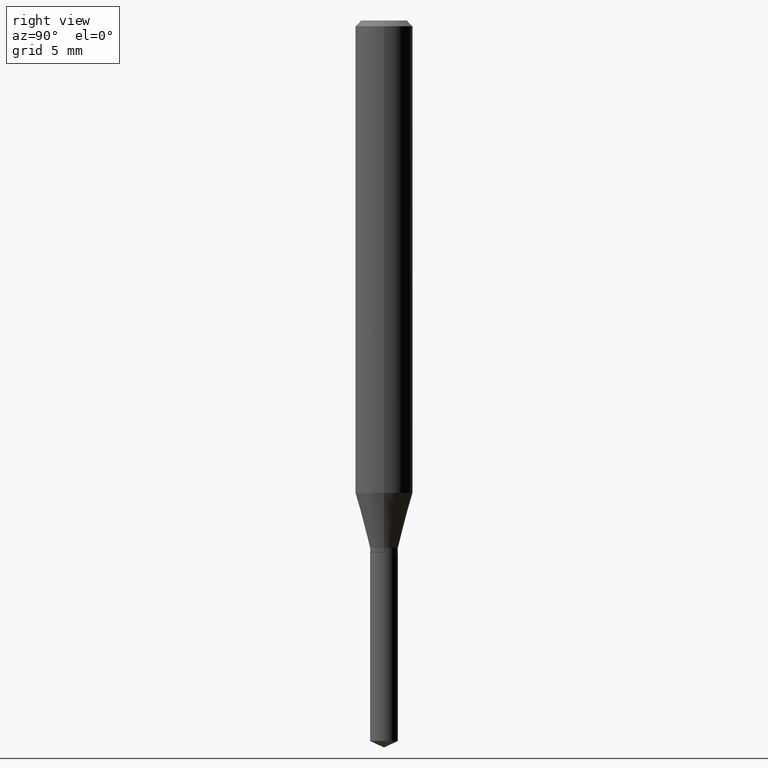
[diagram: clean part render]
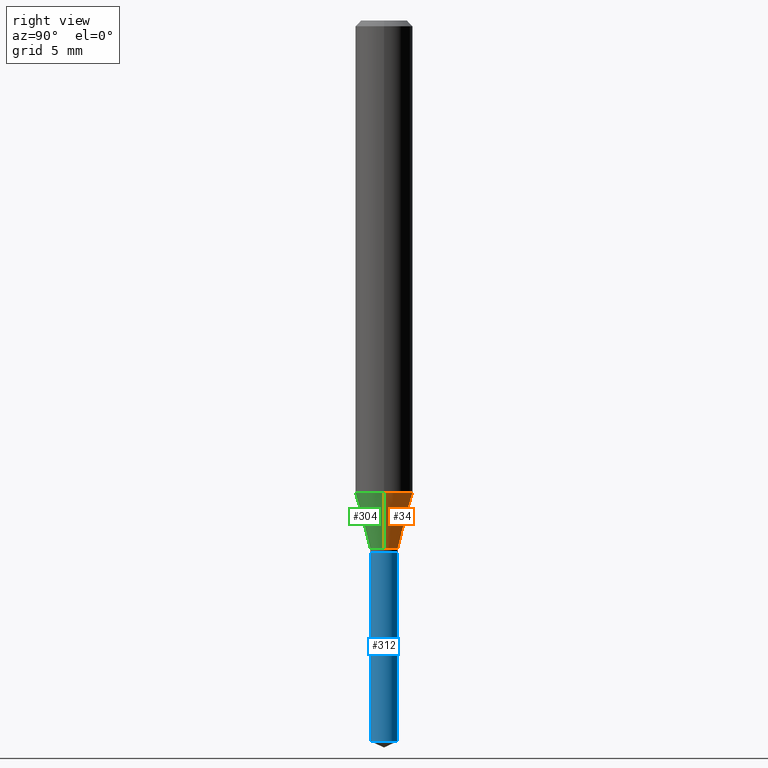
[diagram: same view with three faces highlighted in distinct colors, each labeled with its STEP entity id]
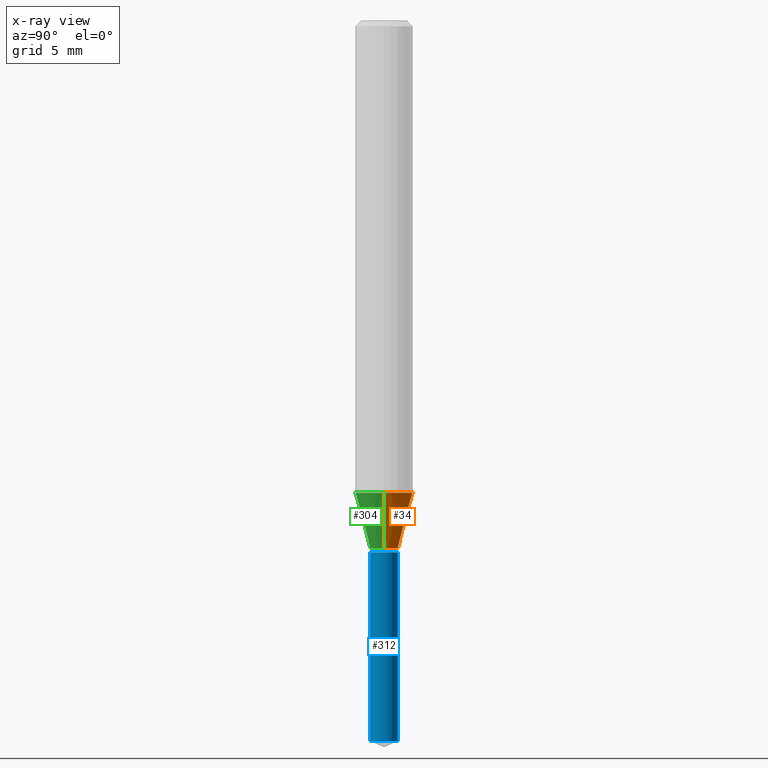
[diagram: x-ray of the same camera — body ghosted, the three highlighted faces saturated]
A machine part, right view with three faces highlighted in distinct colors.
The next image is the same camera in x-ray (body ghosted, the three faces saturated) — at least one of them is partly hidden behind the body in this view.
Their STEP definitions:

[orange] entity #34 — the highlighted conical surface has half-angle 15 deg.
#3 = EDGE_LOOP ( 'NONE', ( #474, #376, #264, #287 ) ) ;
#33 = CARTESIAN_POINT ( 'NONE',  ( 2.655534576636439869E-29, -3.791399585849771334E-15, -1.085899999999999865 ) ) ;
#34 = ADVANCED_FACE ( 'NONE', ( #381 ), #302, .T. ) ;
#40 = VERTEX_POINT ( 'NONE', #341 ) ;
#42 = VECTOR ( 'NONE', #113, 39.37007874015747433 ) ;
#46 = EDGE_CURVE ( 'NONE', #62, #40, #307, .T. ) ;
#47 = CARTESIAN_POINT ( 'NONE',  ( -0.02855000000000000246, -3.602680134212577558E-15, -1.085899999999999865 ) ) ;
#62 = VERTEX_POINT ( 'NONE', #245 ) ;
#77 = CIRCLE ( 'NONE', #335, 0.02855000000000000246 ) ;
#83 = CARTESIAN_POINT ( 'NONE',  ( -0.05905000000000011628, -2.974397335001072911E-15, -0.9720724503691490215 ) ) ;
#84 = AXIS2_PLACEMENT_3D ( 'NONE', #33, #488, #186 ) ;
#95 = EDGE_CURVE ( 'NONE', #189, #152, #124, .T. ) ;
#106 = DIRECTION ( 'NONE',  ( 1.000000000000000000, -6.982962677686258822E-15, 0.000000000000000000 ) ) ;
#113 = DIRECTION ( 'NONE',  ( 0.2588190451025213501, 1.565188264969621968E-15, 0.9659258262890682012 ) ) ;
#124 = LINE ( 'NONE', #274, #405 ) ;
#152 = VERTEX_POINT ( 'NONE', #83 ) ;
#153 = DIRECTION ( 'NONE',  ( -2.445468806185136597E-29, 3.491481338843145583E-15, 1.000000000000000000 ) ) ;
#159 = DIRECTION ( 'NONE',  ( -0.2588190451025213501, 5.211531920934551042E-15, 0.9659258262890682012 ) ) ;
#185 = DIRECTION ( 'NONE',  ( -2.445468806185136597E-29, 3.491481338843145583E-15, 1.000000000000000000 ) ) ;
#186 = DIRECTION ( 'NONE',  ( 1.000000000000000000, -6.982962677686258822E-15, 0.000000000000000000 ) ) ;
#189 = VERTEX_POINT ( 'NONE', #47 ) ;
#245 = CARTESIAN_POINT ( 'NONE',  ( 0.02855000000000000246, -3.990763170297714142E-15, -1.085899999999999865 ) ) ;
#246 = CIRCLE ( 'NONE', #478, 0.05905000000000011628 ) ;
#264 = ORIENTED_EDGE ( 'NONE', *, *, #457, .F. ) ;
#266 = DIRECTION ( 'NONE',  ( 1.000000000000000000, -6.982962677686266711E-15, 0.000000000000000000 ) ) ;
#274 = CARTESIAN_POINT ( 'NONE',  ( -0.02855000000000000246, -3.588539634790262196E-15, -1.085899999999999865 ) ) ;
#287 = ORIENTED_EDGE ( 'NONE', *, *, #46, .F. ) ;
#302 = CONICAL_SURFACE ( 'NONE', #84, 0.02855000000000000246, 0.2617993877991500740 ) ;
#306 = CARTESIAN_POINT ( 'NONE',  ( 2.655534576636439869E-29, -3.791399585849771334E-15, -1.085899999999999865 ) ) ;
#307 = LINE ( 'NONE', #420, #42 ) ;
#335 = AXIS2_PLACEMENT_3D ( 'NONE', #306, #153, #106 ) ;
#341 = CARTESIAN_POINT ( 'NONE',  ( 0.05905000000000011628, -3.806316766584788113E-15, -0.9720724503691490215 ) ) ;
#376 = ORIENTED_EDGE ( 'NONE', *, *, #95, .T. ) ;
#377 = CARTESIAN_POINT ( 'NONE',  ( 2.377172854729703171E-29, -3.393972820467413587E-15, -0.9720724503691490215 ) ) ;
#381 = FACE_OUTER_BOUND ( 'NONE', #3, .T. ) ;
#405 = VECTOR ( 'NONE', #159, 39.37007874015747433 ) ;
#420 = CARTESIAN_POINT ( 'NONE',  ( 0.02855000000000000246, -3.990763170297714142E-15, -1.085899999999999865 ) ) ;
#433 = EDGE_CURVE ( 'NONE', #62, #189, #77, .T. ) ;
#457 = EDGE_CURVE ( 'NONE', #40, #152, #246, .T. ) ;
#474 = ORIENTED_EDGE ( 'NONE', *, *, #433, .T. ) ;
#478 = AXIS2_PLACEMENT_3D ( 'NONE', #377, #185, #266 ) ;
#488 = DIRECTION ( 'NONE',  ( -2.445468806185136597E-29, 3.491481338843145583E-15, 1.000000000000000000 ) ) ;

[blue] entity #312 — the highlighted cylindrical surface (edge-blend (fillet) strip) has radius 0.7252 mm, axis along (-0, 0, 1).
#17 = AXIS2_PLACEMENT_3D ( 'NONE', #74, #414, #343 ) ;
#22 = DIRECTION ( 'NONE',  ( -6.982962677686265133E-15, -1.000000000000000000, 4.784322230585399479E-15 ) ) ;
#25 = VERTEX_POINT ( 'NONE', #226 ) ;
#53 = VECTOR ( 'NONE', #303, 39.37007874015748143 ) ;
#54 = CARTESIAN_POINT ( 'NONE',  ( 2.028599510595448342E-16, 0.02854999999999481564, -1.482786916359674967 ) ) ;
#57 = ORIENTED_EDGE ( 'NONE', *, *, #372, .F. ) ;
#74 = CARTESIAN_POINT ( 'NONE',  ( 3.626184356031370148E-29, -5.177015148886716837E-15, -1.482786916359674967 ) ) ;
#92 = CARTESIAN_POINT ( 'NONE',  ( 2.676565608369631794E-29, -3.821426325363822773E-15, -1.094499999999999806 ) ) ;
#105 = CIRCLE ( 'NONE', #482, 0.02854999999999999899 ) ;
#131 = FACE_OUTER_BOUND ( 'NONE', #386, .T. ) ;
#133 = DIRECTION ( 'NONE',  ( -6.982962677686265133E-15, -1.000000000000000000, 4.784322230585399479E-15 ) ) ;
#139 = CARTESIAN_POINT ( 'NONE',  ( -1.993635844479161093E-16, -0.02855000000000381885, -1.094499999999999806 ) ) ;
#140 = EDGE_CURVE ( 'NONE', #254, #338, #315, .T. ) ;
#143 = ORIENTED_EDGE ( 'NONE', *, *, #140, .F. ) ;
#151 = CARTESIAN_POINT ( 'NONE',  ( 2.028599510595352939E-16, 0.02854999999999617566, -1.094500000000000028 ) ) ;
#173 = CARTESIAN_POINT ( 'NONE',  ( 2.676565608369631794E-29, -3.821426325363822773E-15, -1.094499999999999806 ) ) ;
#211 = CARTESIAN_POINT ( 'NONE',  ( -1.993635844479065690E-16, -0.02855000000000517194, -1.482786916359674967 ) ) ;
#226 = CARTESIAN_POINT ( 'NONE',  ( 2.028599510595448835E-16, 0.02854999999999617566, -1.094500000000000028 ) ) ;
#230 = LINE ( 'NONE', #151, #53 ) ;
#250 = VERTEX_POINT ( 'NONE', #54 ) ;
#254 = VERTEX_POINT ( 'NONE', #211 ) ;
#257 = DIRECTION ( 'NONE',  ( -2.445662492480417196E-29, 3.491203969044364518E-15, 1.000000000000000000 ) ) ;
#261 = ORIENTED_EDGE ( 'NONE', *, *, #389, .T. ) ;
#275 = CIRCLE ( 'NONE', #17, 0.02854999999999999899 ) ;
#279 = DIRECTION ( 'NONE',  ( -2.445662492480417196E-29, 3.491203969044364912E-15, 1.000000000000000000 ) ) ;
#284 = DIRECTION ( 'NONE',  ( -2.445662492480417196E-29, 3.491203969044364518E-15, 1.000000000000000000 ) ) ;
#303 = DIRECTION ( 'NONE',  ( -2.445662492480417196E-29, 3.491203969044364912E-15, 1.000000000000000000 ) ) ;
#312 = ADVANCED_FACE ( 'NONE', ( #131 ), #441, .T. ) ;
#315 = LINE ( 'NONE', #395, #365 ) ;
#338 = VERTEX_POINT ( 'NONE', #139 ) ;
#339 = ORIENTED_EDGE ( 'NONE', *, *, #466, .T. ) ;
#343 = DIRECTION ( 'NONE',  ( -6.982962677686265133E-15, -1.000000000000000000, 0.000000000000000000 ) ) ;
#347 = AXIS2_PLACEMENT_3D ( 'NONE', #92, #257, #133 ) ;
#365 = VECTOR ( 'NONE', #279, 39.37007874015748143 ) ;
#372 = EDGE_CURVE ( 'NONE', #338, #25, #105, .T. ) ;
#386 = EDGE_LOOP ( 'NONE', ( #261, #339, #57, #143 ) ) ;
#389 = EDGE_CURVE ( 'NONE', #254, #250, #275, .T. ) ;
#395 = CARTESIAN_POINT ( 'NONE',  ( -1.993635844479161093E-16, -0.02855000000000381885, -1.094499999999999806 ) ) ;
#414 = DIRECTION ( 'NONE',  ( -2.445662492480417196E-29, 3.491203969044364518E-15, 1.000000000000000000 ) ) ;
#441 = CYLINDRICAL_SURFACE ( 'NONE', #347, 0.02854999999999999899 ) ;
#466 = EDGE_CURVE ( 'NONE', #250, #25, #230, .T. ) ;
#482 = AXIS2_PLACEMENT_3D ( 'NONE', #173, #284, #22 ) ;

[green] entity #304 — the highlighted conical surface has half-angle 15 deg.
#7 = CONICAL_SURFACE ( 'NONE', #411, 0.02855000000000000246, 0.2617993877991500740 ) ;
#24 = CARTESIAN_POINT ( 'NONE',  ( 2.655534576636439869E-29, -3.791399585849771334E-15, -1.085899999999999865 ) ) ;
#37 = EDGE_LOOP ( 'NONE', ( #403, #104, #231, #154 ) ) ;
#40 = VERTEX_POINT ( 'NONE', #341 ) ;
#42 = VECTOR ( 'NONE', #113, 39.37007874015747433 ) ;
#46 = EDGE_CURVE ( 'NONE', #62, #40, #307, .T. ) ;
#47 = CARTESIAN_POINT ( 'NONE',  ( -0.02855000000000000246, -3.602680134212577558E-15, -1.085899999999999865 ) ) ;
#62 = VERTEX_POINT ( 'NONE', #245 ) ;
#70 = CARTESIAN_POINT ( 'NONE',  ( 2.655534576636439869E-29, -3.791399585849771334E-15, -1.085899999999999865 ) ) ;
#75 = AXIS2_PLACEMENT_3D ( 'NONE', #70, #227, #382 ) ;
#83 = CARTESIAN_POINT ( 'NONE',  ( -0.05905000000000011628, -2.974397335001072911E-15, -0.9720724503691490215 ) ) ;
#95 = EDGE_CURVE ( 'NONE', #189, #152, #124, .T. ) ;
#103 = FACE_OUTER_BOUND ( 'NONE', #37, .T. ) ;
#104 = ORIENTED_EDGE ( 'NONE', *, *, #487, .T. ) ;
#113 = DIRECTION ( 'NONE',  ( 0.2588190451025213501, 1.565188264969621968E-15, 0.9659258262890682012 ) ) ;
#124 = LINE ( 'NONE', #274, #405 ) ;
#142 = CIRCLE ( 'NONE', #292, 0.05905000000000011628 ) ;
#152 = VERTEX_POINT ( 'NONE', #83 ) ;
#154 = ORIENTED_EDGE ( 'NONE', *, *, #285, .F. ) ;
#159 = DIRECTION ( 'NONE',  ( -0.2588190451025213501, 5.211531920934551042E-15, 0.9659258262890682012 ) ) ;
#170 = DIRECTION ( 'NONE',  ( -2.445468806185136597E-29, 3.491481338843145583E-15, 1.000000000000000000 ) ) ;
#189 = VERTEX_POINT ( 'NONE', #47 ) ;
#205 = CIRCLE ( 'NONE', #75, 0.02855000000000000246 ) ;
#227 = DIRECTION ( 'NONE',  ( -2.445468806185136597E-29, 3.491481338843145583E-15, 1.000000000000000000 ) ) ;
#231 = ORIENTED_EDGE ( 'NONE', *, *, #46, .T. ) ;
#245 = CARTESIAN_POINT ( 'NONE',  ( 0.02855000000000000246, -3.990763170297714142E-15, -1.085899999999999865 ) ) ;
#274 = CARTESIAN_POINT ( 'NONE',  ( -0.02855000000000000246, -3.588539634790262196E-15, -1.085899999999999865 ) ) ;
#285 = EDGE_CURVE ( 'NONE', #152, #40, #142, .T. ) ;
#292 = AXIS2_PLACEMENT_3D ( 'NONE', #333, #331, #370 ) ;
#304 = ADVANCED_FACE ( 'NONE', ( #103 ), #7, .T. ) ;
#307 = LINE ( 'NONE', #420, #42 ) ;
#331 = DIRECTION ( 'NONE',  ( -2.445468806185136597E-29, 3.491481338843145583E-15, 1.000000000000000000 ) ) ;
#333 = CARTESIAN_POINT ( 'NONE',  ( 2.377172854729703171E-29, -3.393972820467413587E-15, -0.9720724503691490215 ) ) ;
#341 = CARTESIAN_POINT ( 'NONE',  ( 0.05905000000000011628, -3.806316766584788113E-15, -0.9720724503691490215 ) ) ;
#370 = DIRECTION ( 'NONE',  ( 1.000000000000000000, -6.982962677686266711E-15, 0.000000000000000000 ) ) ;
#382 = DIRECTION ( 'NONE',  ( 1.000000000000000000, -6.982962677686258822E-15, 0.000000000000000000 ) ) ;
#403 = ORIENTED_EDGE ( 'NONE', *, *, #95, .F. ) ;
#405 = VECTOR ( 'NONE', #159, 39.37007874015747433 ) ;
#411 = AXIS2_PLACEMENT_3D ( 'NONE', #24, #170, #469 ) ;
#420 = CARTESIAN_POINT ( 'NONE',  ( 0.02855000000000000246, -3.990763170297714142E-15, -1.085899999999999865 ) ) ;
#469 = DIRECTION ( 'NONE',  ( 1.000000000000000000, -6.982962677686258822E-15, 0.000000000000000000 ) ) ;
#487 = EDGE_CURVE ( 'NONE', #189, #62, #205, .T. ) ;